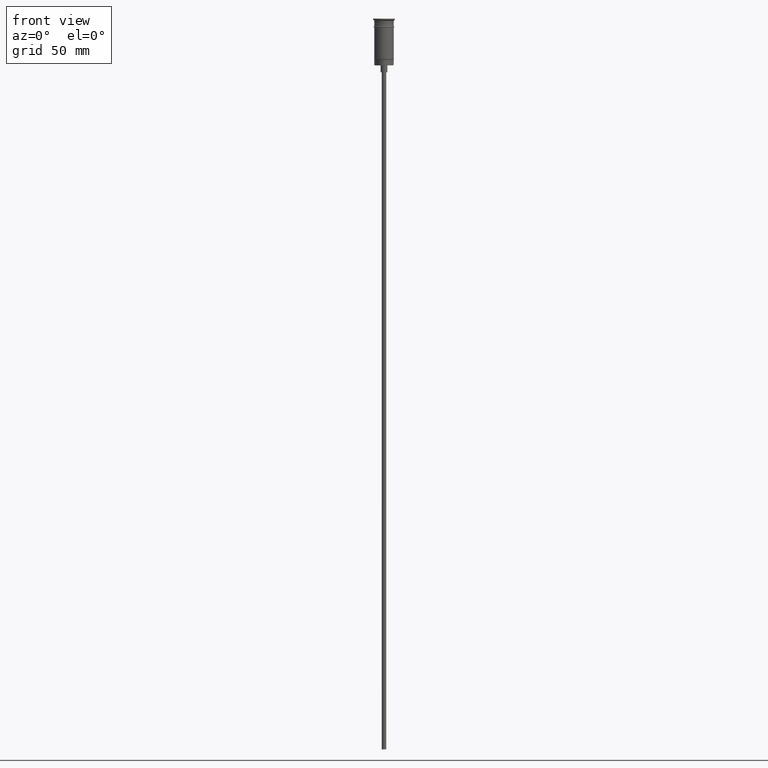
[diagram: clean part render]
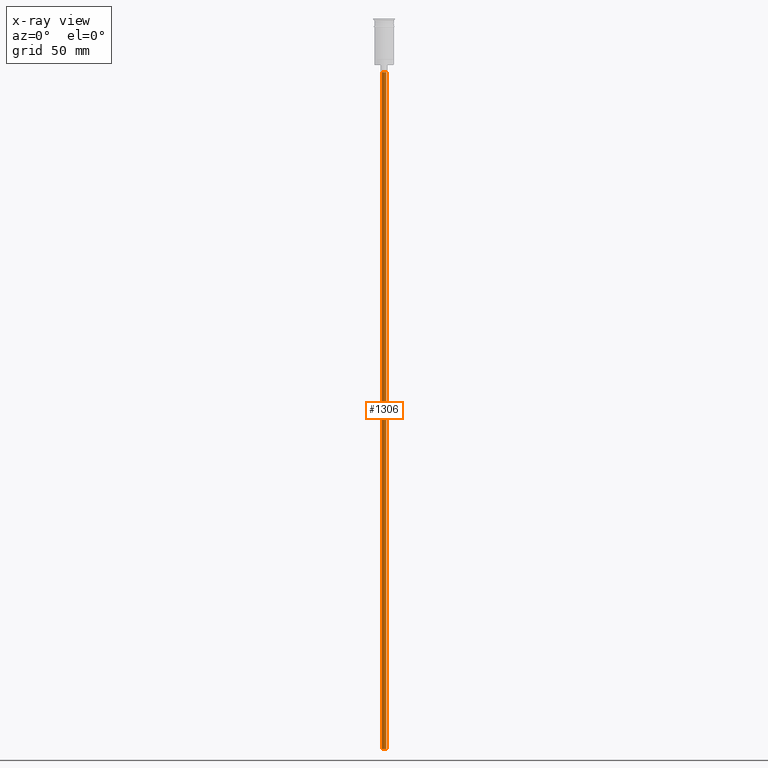
[diagram: x-ray — body ghosted, one internal face saturated and labeled with its STEP entity id]
A machine part, front view, then the same camera in x-ray: the body is ghosted and one INTERNAL B-rep face — a face not visible from any outside direction — is saturated and labeled: STEP entity #1306.
In plain terms, the highlighted cylindrical surface (edge-blend (fillet) strip) has radius 1 mm, axis along (-0, -0, 1).
Its self-contained STEP definition (entity closure, byte-faithful):
#71 = ORIENTED_EDGE ( 'NONE', *, *, #1226, .T. ) ;
#75 = CARTESIAN_POINT ( 'NONE',  ( 0.000000000000000000, 0.000000000000000000, -23.49999999999999645 ) ) ;
#88 = VERTEX_POINT ( 'NONE', #1467 ) ;
#89 = DIRECTION ( 'NONE',  ( -0.000000000000000000, -0.000000000000000000, 1.000000000000000000 ) ) ;
#186 = DIRECTION ( 'NONE',  ( -1.000000000000000000, 0.000000000000000000, 0.000000000000000000 ) ) ;
#204 = CARTESIAN_POINT ( 'NONE',  ( 0.9999999999999997780, 0.000000000000000000, -320.5000000000000000 ) ) ;
#231 = VECTOR ( 'NONE', #441, 1000.000000000000000 ) ;
#245 = CIRCLE ( 'NONE', #1032, 0.9999999999999997780 ) ;
#261 = VERTEX_POINT ( 'NONE', #289 ) ;
#288 = DIRECTION ( 'NONE',  ( -1.000000000000000000, 0.000000000000000000, 0.000000000000000000 ) ) ;
#289 = CARTESIAN_POINT ( 'NONE',  ( -0.9999999999999997780, 1.224646799147352961E-16, -23.49999999999999645 ) ) ;
#290 = DIRECTION ( 'NONE',  ( 0.000000000000000000, 0.000000000000000000, -1.000000000000000000 ) ) ;
#344 = AXIS2_PLACEMENT_3D ( 'NONE', #1083, #1573, #838 ) ;
#427 = EDGE_CURVE ( 'NONE', #88, #261, #1086, .T. ) ;
#430 = CARTESIAN_POINT ( 'NONE',  ( -0.9999999999999997780, 1.224646799147352961E-16, -320.5000000000000000 ) ) ;
#441 = DIRECTION ( 'NONE',  ( -0.000000000000000000, -0.000000000000000000, 1.000000000000000000 ) ) ;
#459 = CARTESIAN_POINT ( 'NONE',  ( 0.9999999999999997780, 0.000000000000000000, -23.49999999999999645 ) ) ;
#610 = EDGE_LOOP ( 'NONE', ( #1317, #1181, #71, #757 ) ) ;
#641 = CIRCLE ( 'NONE', #777, 0.9999999999999997780 ) ;
#682 = DIRECTION ( 'NONE',  ( 0.000000000000000000, 0.000000000000000000, -1.000000000000000000 ) ) ;
#731 = EDGE_CURVE ( 'NONE', #1285, #261, #641, .T. ) ;
#757 = ORIENTED_EDGE ( 'NONE', *, *, #731, .T. ) ;
#777 = AXIS2_PLACEMENT_3D ( 'NONE', #75, #682, #288 ) ;
#838 = DIRECTION ( 'NONE',  ( 1.000000000000000000, 0.000000000000000000, 0.000000000000000000 ) ) ;
#963 = LINE ( 'NONE', #204, #1156 ) ;
#970 = FACE_OUTER_BOUND ( 'NONE', #610, .T. ) ;
#1032 = AXIS2_PLACEMENT_3D ( 'NONE', #1179, #290, #186 ) ;
#1083 = CARTESIAN_POINT ( 'NONE',  ( 0.000000000000000000, 0.000000000000000000, -320.5000000000000000 ) ) ;
#1086 = LINE ( 'NONE', #430, #231 ) ;
#1156 = VECTOR ( 'NONE', #89, 1000.000000000000000 ) ;
#1179 = CARTESIAN_POINT ( 'NONE',  ( 0.000000000000000000, 0.000000000000000000, -320.5000000000000000 ) ) ;
#1181 = ORIENTED_EDGE ( 'NONE', *, *, #1477, .F. ) ;
#1208 = CYLINDRICAL_SURFACE ( 'NONE', #344, 0.9999999999999997780 ) ;
#1226 = EDGE_CURVE ( 'NONE', #1371, #1285, #963, .T. ) ;
#1285 = VERTEX_POINT ( 'NONE', #459 ) ;
#1306 = ADVANCED_FACE ( 'NONE', ( #970 ), #1208, .T. ) ;
#1317 = ORIENTED_EDGE ( 'NONE', *, *, #427, .F. ) ;
#1351 = CARTESIAN_POINT ( 'NONE',  ( 0.9999999999999997780, 0.000000000000000000, -320.5000000000000000 ) ) ;
#1371 = VERTEX_POINT ( 'NONE', #1351 ) ;
#1467 = CARTESIAN_POINT ( 'NONE',  ( -0.9999999999999997780, 1.224646799147352961E-16, -320.5000000000000000 ) ) ;
#1477 = EDGE_CURVE ( 'NONE', #1371, #88, #245, .T. ) ;
#1573 = DIRECTION ( 'NONE',  ( -0.000000000000000000, -0.000000000000000000, 1.000000000000000000 ) ) ;